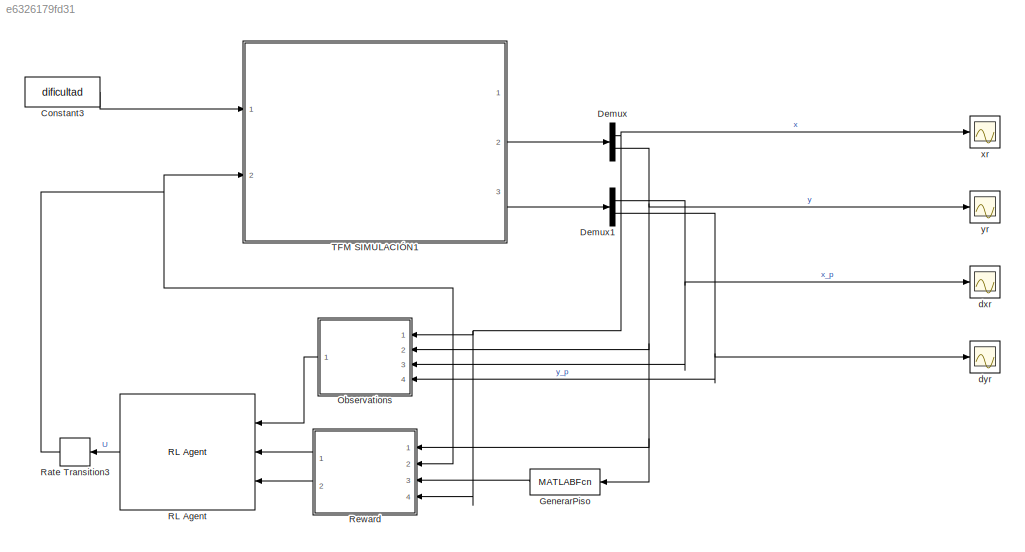
MODEL slx_e6326179fd31
KIND model
CONFIG AbsTol = auto
CONFIG EnableMultiTasking = off
CONFIG FixedStep = Ts
CONFIG MaxStep = auto
CONFIG MinStep = auto
CONFIG RelTol = 1e-3
CONFIG SampleTimeConstraint = Unconstrained
CONFIG SolverName = VariableStepAuto
CONFIG StartTime = 0.0
CONFIG StopFcn = %animacion_monza(dificultad, Ts, giro_m, xs, ys)
CONFIG StopTime = 20
BLOCK [Constant] Constant3
  Value = dificultad
BLOCK [Demux] Demux
  Outputs = 2
  Ports = [1, 2]
BLOCK [Demux] Demux1
  Outputs = 2
  Ports = [1, 2]
BLOCK [MATLABFcn] GenerarPiso
  MATLABFcn = GenerarPiso(u, riel)
  Ports = [1, 1]
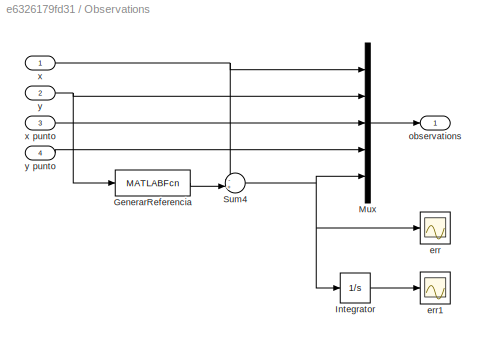
BLOCK [SubSystem] Observations
  Ports = [4, 1]
  RequestExecContextInheritance = off
BLOCK [MATLABFcn] Observations/GenerarReferencia
  MATLABFcn = GenerarReferencia(u, riel)
  Ports = [1, 1]
BLOCK [Integrator] Observations/Integrator
  Ports = [1, 1]
BLOCK [Mux] Observations/Mux
  DisplayOption = bar
  Inputs = 5
  Ports = [5, 1]
BLOCK [Sum] Observations/Sum4
  Inputs = -+|
  Ports = [2, 1]
BLOCK [Scope] Observations/err
  Floating = off
  NumInputPorts = 1
  Ports = [1]
  ScopeSpecificationString = Simulink.scopes.TimeScopeBlockCfg('CurrentConfiguration', extmgr.ConfigurationSet(extmgr.Configuration('Core','General UI',true),extmgr.Configuration('Core','Source UI',true),extmgr.Configuration('Sources','WiredSimulink',true,'DataLoggingVariableName','err','DataLogging',true,'DataLoggingSaveFormat','Array','SampleTime','Ts'),extmgr.Configuration('Visuals','Time Domain',true,'SerializedDisplays',...<+1425ch>
BLOCK [Scope] Observations/err1
  Floating = off
  NumInputPorts = 1
  Ports = [1]
  ScopeSpecificationString = Simulink.scopes.TimeScopeBlockCfg('CurrentConfiguration', extmgr.ConfigurationSet(extmgr.Configuration('Core','General UI',true),extmgr.Configuration('Core','Source UI',true),extmgr.Configuration('Sources','WiredSimulink',true,'DataLoggingVariableName','derr','DataLogging',true,'DataLoggingSaveFormat','Array','SampleTime','Ts'),extmgr.Configuration('Visuals','Time Domain',true,'SerializedDisplays'...<+1432ch>
BLOCK [Outport] Observations/observations
BLOCK [Inport] Observations/x
BLOCK [Inport] Observations/x punto
  Port = 3
BLOCK [Inport] Observations/y
  Port = 2
BLOCK [Inport] Observations/y punto
  Port = 4
BLOCK [Reference] RL Agent  REF=rllib/RL Agent
  Ports = [3, 1]
  SourceBlock = rllib/RL Agent
  SourceProductBaseCode = RL
  SourceType = RL Agent
BLOCK [RateTransition] Rate Transition3
  OutPortSampleTime = 0
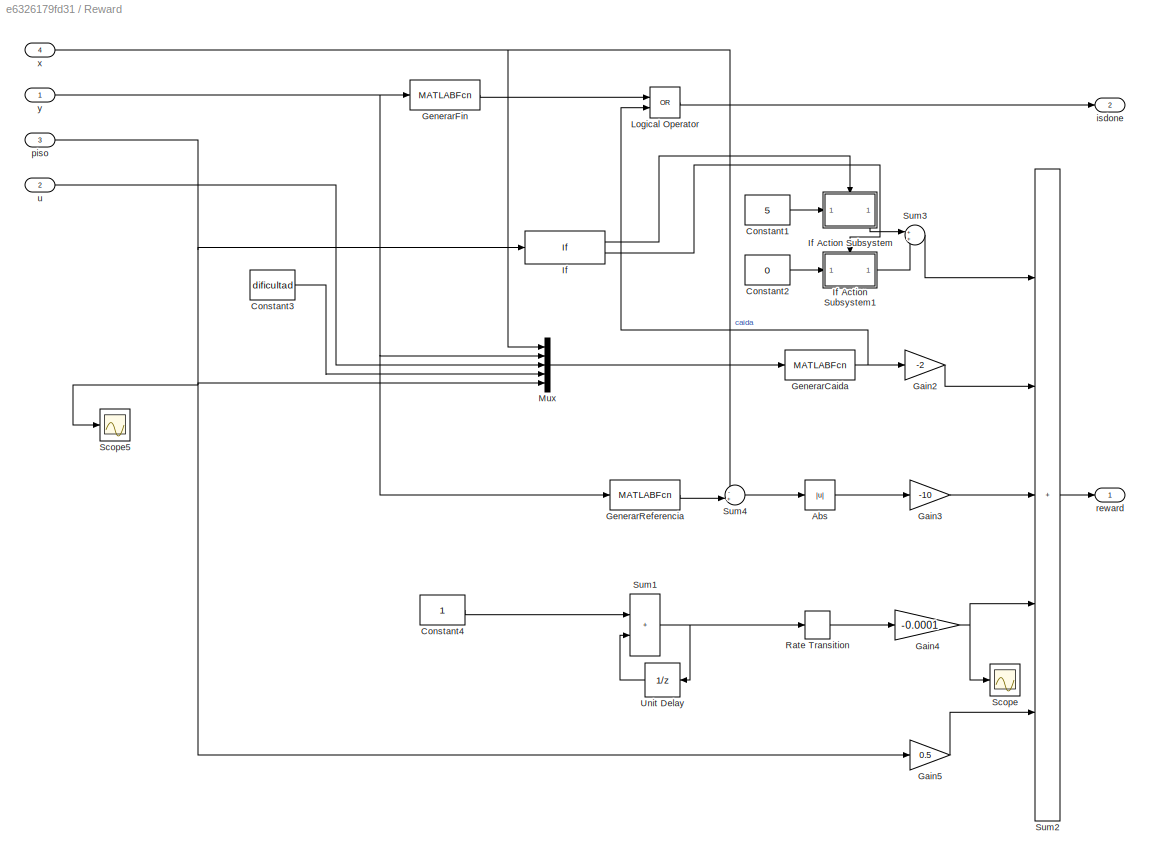
BLOCK [SubSystem] Reward
  Ports = [4, 2]
  RequestExecContextInheritance = off
BLOCK [Abs] Reward/Abs
  SaturateOnIntegerOverflow = off
BLOCK [Constant] Reward/Constant1
  Value = 5
BLOCK [Constant] Reward/Constant2
  Value = 0
BLOCK [Constant] Reward/Constant3
  Value = dificultad
BLOCK [Constant] Reward/Constant4
BLOCK [Gain] Reward/Gain2
  Gain = -2
BLOCK [Gain] Reward/Gain3
  Gain = -10
BLOCK [Gain] Reward/Gain4
  Gain = -0.0001
BLOCK [Gain] Reward/Gain5
  Gain = 0.5
BLOCK [MATLABFcn] Reward/GenerarCaida
  MATLABFcn = FailDetector(u(1),u(2),u(3),u(4),u(5))
  OutputDimensions = 1
  Ports = [1, 1]
BLOCK [MATLABFcn] Reward/GenerarFin
  MATLABFcn = fin(u, riel)
  OutputDimensions = 1
  Ports = [1, 1]
BLOCK [MATLABFcn] Reward/GenerarReferencia
  MATLABFcn = GenerarReferencia(u, riel)
  Ports = [1, 1]
BLOCK [If] Reward/If
  IfExpression = u1 > 5
  Ports = [1, 2]
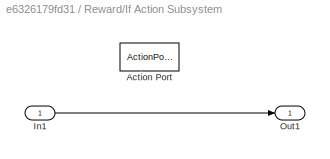
BLOCK [SubSystem] Reward/If Action Subsystem
  Ports = [1, 1, 0, 0, 0, 0, 0, 1]
  RequestExecContextInheritance = off
  TreatAsAtomicUnit = on
BLOCK [ActionPort] Reward/If Action Subsystem/Action Port
  ActionPortLabel = if(u1 > 5)
BLOCK [Inport] Reward/If Action Subsystem/In1
BLOCK [Outport] Reward/If Action Subsystem/Out1
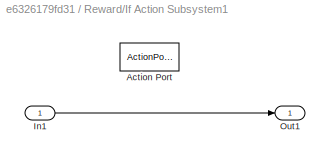
BLOCK [SubSystem] Reward/If Action Subsystem1
  Ports = [1, 1, 0, 0, 0, 0, 0, 1]
  RequestExecContextInheritance = off
  TreatAsAtomicUnit = on
BLOCK [ActionPort] Reward/If Action Subsystem1/Action Port
  ActionPortLabel = else
BLOCK [Inport] Reward/If Action Subsystem1/In1
BLOCK [Outport] Reward/If Action Subsystem1/Out1
BLOCK [Logic] Reward/Logical Operator
  AllPortsSameDT = off
  Operator = OR
  OutDataTypeStr = boolean
  Ports = [2, 1]
BLOCK [Mux] Reward/Mux
  DisplayOption = bar
  Inputs = 5
  Ports = [5, 1]
BLOCK [RateTransition] Reward/Rate Transition
  OutPortSampleTime = Ts
BLOCK [Scope] Reward/Scope
  Floating = off
  NumInputPorts = 1
  Ports = [1]
  ScopeSpecificationString = Simulink.scopes.TimeScopeBlockCfg('CurrentConfiguration', extmgr.ConfigurationSet(extmgr.Configuration('Core','General UI',true),extmgr.Configuration('Core','Source UI',true),extmgr.Configuration('Sources','WiredSimulink',true,'DataLoggingVariableName','ScopeData1'),extmgr.Configuration('Visuals','Time Domain',true,'SerializedDisplays',{struct('MinYLimReal','-0.2377','MaxYLimReal','0.0263','YLabel...<+1358ch>
BLOCK [Scope] Reward/Scope5
  Floating = off
  NumInputPorts = 1
  Ports = [1]
  ScopeSpecificationString = Simulink.scopes.TimeScopeBlockCfg('CurrentConfiguration', extmgr.ConfigurationSet(extmgr.Configuration('Core','General UI',true),extmgr.Configuration('Core','Source UI',true),extmgr.Configuration('Sources','WiredSimulink',true,'DataLoggingVariableName','ScopeData6'),extmgr.Configuration('Visuals','Time Domain',true,'SerializedDisplays',{struct('MinYLimReal','0.875','MaxYLimReal','2.125','YLabelRea...<+1398ch>
BLOCK [Sum] Reward/Sum1
  IconShape = rectangular
  Ports = [2, 1]
BLOCK [Sum] Reward/Sum2
  IconShape = rectangular
  Inputs = +++++
  Ports = [5, 1]
BLOCK [Sum] Reward/Sum3
  Ports = [2, 1]
BLOCK [Sum] Reward/Sum4
  Inputs = -+|
  Ports = [2, 1]
BLOCK [UnitDelay] Reward/Unit Delay
  HasFrameUpgradeWarning = on
  SampleTime = -1
BLOCK [Outport] Reward/isdone
  Port = 2
  VectorParamsAs1DForOutWhenUnconnected = off
BLOCK [Inport] Reward/piso
  Port = 3
BLOCK [Outport] Reward/reward
  VectorParamsAs1DForOutWhenUnconnected = off
BLOCK [Inport] Reward/u
  Port = 2
BLOCK [Inport] Reward/x
  Port = 4
BLOCK [Inport] Reward/y
BLOCK [ModelReference] TFM SIMULACIÓN1
  Gain = 0.05
  Gain2 = 0.0223
  ModelNameDialog = TFM_SIMULACI_N1.slx
  ModelReferenceVersion = 9.19
  Ports = [2, 3]
  UsingDefaultArgumentValue = 0,0
BLOCK [Scope] dxr
  Floating = off
  NumInputPorts = 1
  Ports = [1]
  ScopeSpecificationString = Simulink.scopes.TimeScopeBlockCfg('CurrentConfiguration', extmgr.ConfigurationSet(extmgr.Configuration('Core','General UI',true),extmgr.Configuration('Core','Source UI',true),extmgr.Configuration('Sources','WiredSimulink',true,'DataLoggingVariableName','dxr','DataLogging',true,'DataLoggingSaveFormat','Array','SampleTime','Ts'),extmgr.Configuration('Visuals','Time Domain',true,'SerializedDisplays',...<+1428ch>
BLOCK [Scope] dyr
  Floating = off
  NumInputPorts = 1
  Ports = [1]
  ScopeSpecificationString = Simulink.scopes.TimeScopeBlockCfg('CurrentConfiguration', extmgr.ConfigurationSet(extmgr.Configuration('Core','General UI',true),extmgr.Configuration('Core','Source UI',true),extmgr.Configuration('Sources','WiredSimulink',true,'DataLoggingVariableName','dyr','DataLogging',true,'DataLoggingSaveFormat','Array','SampleTime','Ts'),extmgr.Configuration('Visuals','Time Domain',true,'SerializedDisplays',...<+1429ch>
BLOCK [Scope] xr
  Floating = off
  NumInputPorts = 1
  Ports = [1]
  ScopeSpecificationString = Simulink.scopes.TimeScopeBlockCfg('CurrentConfiguration', extmgr.ConfigurationSet(extmgr.Configuration('Core','General UI',true),extmgr.Configuration('Core','Source UI',true),extmgr.Configuration('Sources','WiredSimulink',true,'DataLoggingVariableName','xr','DataLogging',true,'DataLoggingSaveFormat','Array','SampleTime','Ts'),extmgr.Configuration('Visuals','Time Domain',true,'SerializedDisplays',{...<+1405ch>
BLOCK [Scope] yr
  Floating = off
  NumInputPorts = 1
  Ports = [1]
  ScopeSpecificationString = Simulink.scopes.TimeScopeBlockCfg('CurrentConfiguration', extmgr.ConfigurationSet(extmgr.Configuration('Core','General UI',true),extmgr.Configuration('Core','Source UI',true),extmgr.Configuration('Sources','WiredSimulink',true,'DataLoggingVariableName','yr','DataLogging',true,'DataLoggingSaveFormat','Array','SampleTime','Ts'),extmgr.Configuration('Visuals','Time Domain',true,'SerializedDisplays',{...<+1419ch>
LINE Constant3:1 -> TFM SIMULACIÓN1:1
NET Demux1:1 -> Observations:3, dxr:1
NET Demux1:2 -> Observations:4, dyr:1
NET Demux:1 -> Observations:1, Reward:4, xr:1
NET Demux:2 -> GenerarPiso:1, Observations:2, Reward:1, yr:1
LINE GenerarPiso:1 -> Reward:3
LINE Observations/GenerarReferencia:1 -> Observations/Sum4:2
LINE Observations/Integrator:1 -> Observations/err1:1
LINE Observations/Mux:1 -> Observations/observations:1
NET Observations/Sum4:1 -> Observations/Integrator:1, Observations/Mux:5, Observations/err:1
LINE Observations/x punto:1 -> Observations/Mux:3
NET Observations/x:1 -> Observations/Mux:1, Observations/Sum4:1
LINE Observations/y punto:1 -> Observations/Mux:4
NET Observations/y:1 -> Observations/GenerarReferencia:1, Observations/Mux:2
LINE Observations:1 -> RL Agent:1
LINE RL Agent:1 -> Rate Transition3:1
NET Rate Transition3:1 -> Reward:2, TFM SIMULACIÓN1:2
LINE Reward/Abs:1 -> Reward/Gain3:1
LINE Reward/Constant1:1 -> Reward/If Action Subsystem:1
LINE Reward/Constant2:1 -> Reward/If Action Subsystem1:1
LINE Reward/Constant3:1 -> Reward/Mux:4
LINE Reward/Constant4:1 -> Reward/Sum1:1
LINE Reward/Gain2:1 -> Reward/Sum2:2
LINE Reward/Gain3:1 -> Reward/Sum2:3
NET Reward/Gain4:1 -> Reward/Scope:1, Reward/Sum2:4
LINE Reward/Gain5:1 -> Reward/Sum2:5
NET Reward/GenerarCaida:1 -> Reward/Gain2:1, Reward/Logical Operator:2
LINE Reward/GenerarFin:1 -> Reward/Logical Operator:1
LINE Reward/GenerarReferencia:1 -> Reward/Sum4:2
LINE Reward/If Action Subsystem/In1:1 -> Reward/If Action Subsystem/Out1:1
LINE Reward/If Action Subsystem1/In1:1 -> Reward/If Action Subsystem1/Out1:1
LINE Reward/If Action Subsystem1:1 -> Reward/Sum3:2
LINE Reward/If Action Subsystem:1 -> Reward/Sum3:1
LINE Reward/If:1 -> Reward/If Action Subsystem:ifaction
LINE Reward/If:2 -> Reward/If Action Subsystem1:ifaction
LINE Reward/Logical Operator:1 -> Reward/isdone:1
LINE Reward/Mux:1 -> Reward/GenerarCaida:1
LINE Reward/Rate Transition:1 -> Reward/Gain4:1
NET Reward/Sum1:1 -> Reward/Rate Transition:1, Reward/Unit Delay:1
LINE Reward/Sum2:1 -> Reward/reward:1
LINE Reward/Sum3:1 -> Reward/Sum2:1
LINE Reward/Sum4:1 -> Reward/Abs:1
LINE Reward/Unit Delay:1 -> Reward/Sum1:2
NET Reward/piso:1 -> Reward/Gain5:1, Reward/If:1, Reward/Mux:5, Reward/Scope5:1
LINE Reward/u:1 -> Reward/Mux:3
NET Reward/x:1 -> Reward/Mux:1, Reward/Sum4:1
NET Reward/y:1 -> Reward/GenerarFin:1, Reward/GenerarReferencia:1, Reward/Mux:2
LINE Reward:1 -> RL Agent:2
LINE Reward:2 -> RL Agent:3
LINE TFM SIMULACIÓN1:2 -> Demux:1
LINE TFM SIMULACIÓN1:3 -> Demux1:1
note: NET lines group one-source signal fan-out (src -> all destinations, sorted); 1:1 wires keep LINE
